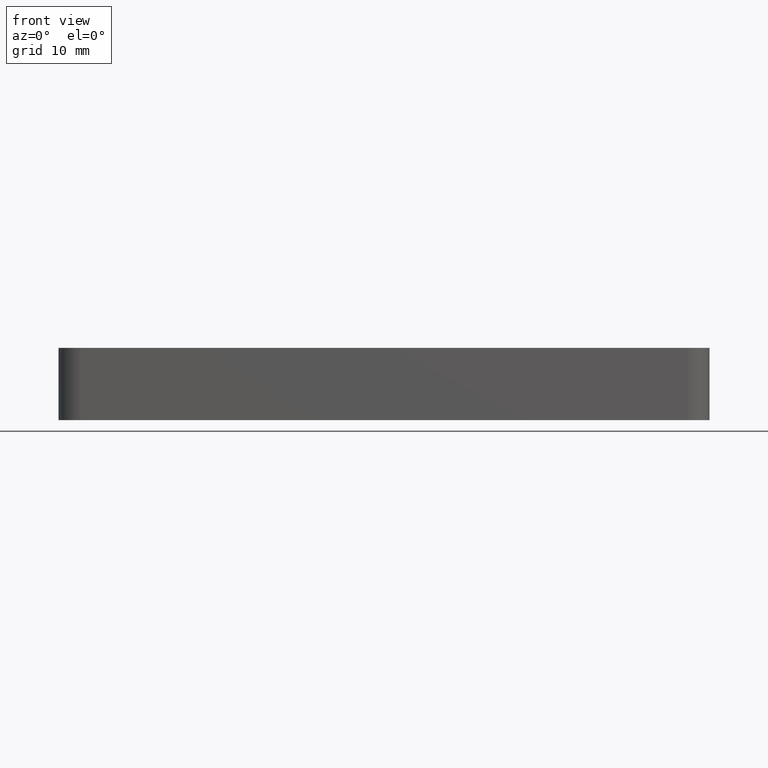
[diagram: clean part render]
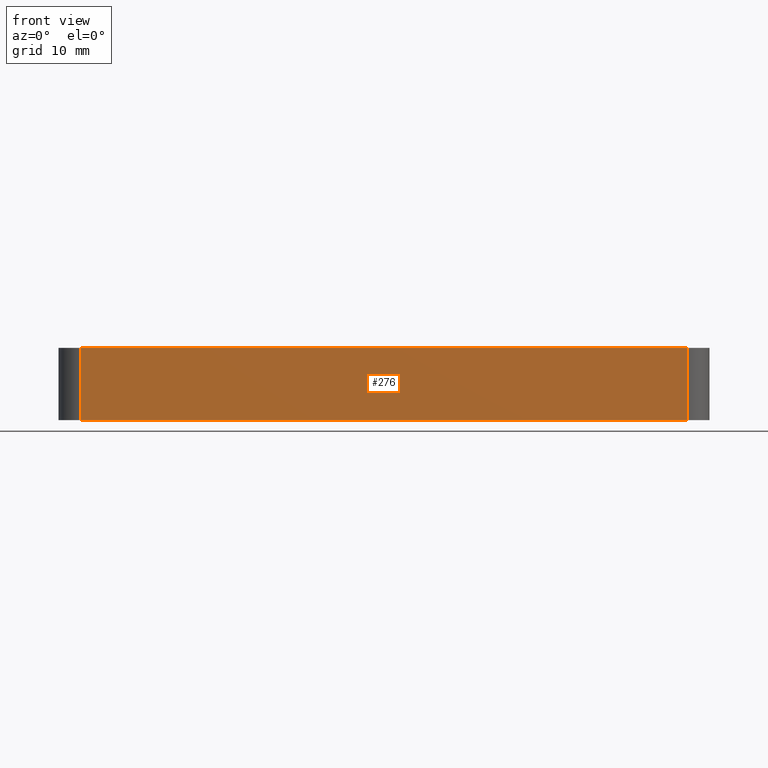
[diagram: same view with one face highlighted and labeled with its STEP entity id]
A machine part, front view. The second image highlights one B-rep face of the part: STEP entity #276.
In plain terms, the highlighted planar face has unit normal (0, -1, 0).
Its self-contained STEP definition (entity closure, byte-faithful):
#31=PLANE('',#305);
#42=FACE_OUTER_BOUND('',#62,.T.);
#62=EDGE_LOOP('',(#224,#225,#226,#227));
#83=LINE('',#418,#99);
#88=LINE('',#430,#104);
#95=LINE('',#459,#111);
#96=LINE('',#461,#112);
#99=VECTOR('',#330,10.);
#104=VECTOR('',#341,84.);
#111=VECTOR('',#370,10.);
#112=VECTOR('',#373,84.);
#134=VERTEX_POINT('',#415);
#135=VERTEX_POINT('',#417);
#139=VERTEX_POINT('',#429);
#149=VERTEX_POINT('',#455);
#160=EDGE_CURVE('',#134,#135,#83,.T.);
#166=EDGE_CURVE('',#135,#139,#88,.T.);
#181=EDGE_CURVE('',#139,#149,#95,.T.);
#182=EDGE_CURVE('',#149,#134,#96,.T.);
#224=ORIENTED_EDGE('',*,*,#160,.F.);
#225=ORIENTED_EDGE('',*,*,#182,.F.);
#226=ORIENTED_EDGE('',*,*,#181,.F.);
#227=ORIENTED_EDGE('',*,*,#166,.F.);
#276=ADVANCED_FACE('',(#42),#31,.T.);
#305=AXIS2_PLACEMENT_3D('',#460,#371,#372);
#330=DIRECTION('',(0.,0.,-1.));
#341=DIRECTION('',(-1.,0.,0.));
#370=DIRECTION('',(0.,0.,1.));
#371=DIRECTION('center_axis',(0.,-1.,0.));
#372=DIRECTION('ref_axis',(1.,0.,0.));
#373=DIRECTION('',(1.,0.,0.));
#415=CARTESIAN_POINT('',(42.,-22.5,10.));
#417=CARTESIAN_POINT('',(42.,-22.5,0.));
#418=CARTESIAN_POINT('',(42.,-22.5,0.));
#429=CARTESIAN_POINT('',(-42.,-22.5,0.));
#430=CARTESIAN_POINT('',(45.,-22.5,0.));
#455=CARTESIAN_POINT('',(-42.,-22.5,10.));
#459=CARTESIAN_POINT('',(-42.,-22.5,0.));
#460=CARTESIAN_POINT('Origin',(-45.,-22.5,0.));
#461=CARTESIAN_POINT('',(45.,-22.5,10.));